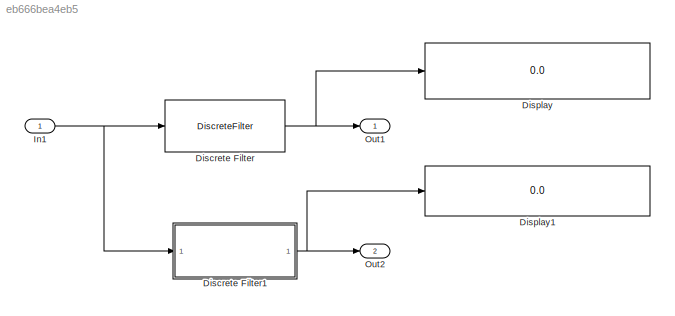
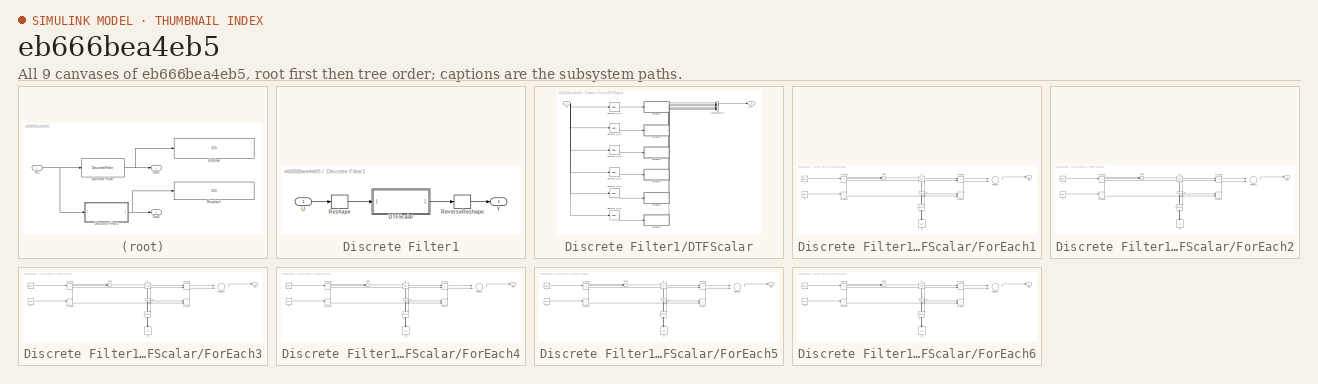
[diagram: thumbnail index - all 9 canvases of the model, root first then tree order]
MODEL slx_eb666bea4eb5
KIND model
CONFIG AbsTol = auto
CONFIG EnableMultiTasking = on
CONFIG FixedStep = 0.200000
CONFIG MaxStep = auto
CONFIG MinStep = auto
CONFIG RelTol = 1e-3
CONFIG SampleTimeConstraint = Unconstrained
CONFIG Solver = ode3
CONFIG SolverName = ode3
CONFIG StartTime = 0.0
CONFIG StopTime = 10.0
WORKSPACE source: MAT-file member
WORKSPACE A = [2 5 4 4]
BLOCK [DiscreteFilter] Discrete Filter
  Denominator = [4 5 6]
  InputPortMap = u0
  Numerator = [1  3]
  Ports = [1, 1]
BLOCK [SubSystem] Discrete Filter1
  MinAlgLoopOccurrences = on
  Ports = [1, 1]
  RequestExecContextInheritance = off
  TreatAsAtomicUnit = on
  Variant = off
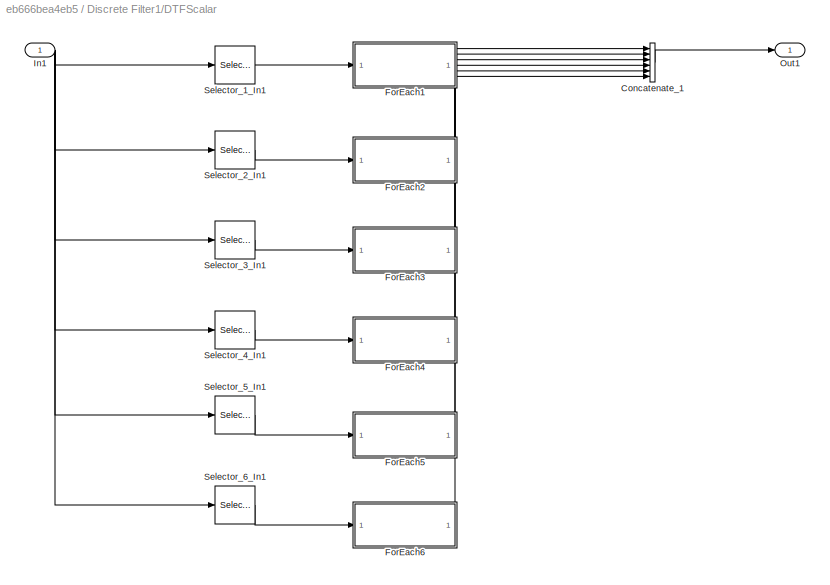
BLOCK [SubSystem] Discrete Filter1/DTFScalar
  MinAlgLoopOccurrences = on
  Ports = [1, 1]
  RequestExecContextInheritance = off
  TreatAsAtomicUnit = on
  Variant = off
BLOCK [Concatenate] Discrete Filter1/DTFScalar/Concatenate_1
  Mode = Multidimensional array
  NumInputs = 6
  Ports = [6, 1]
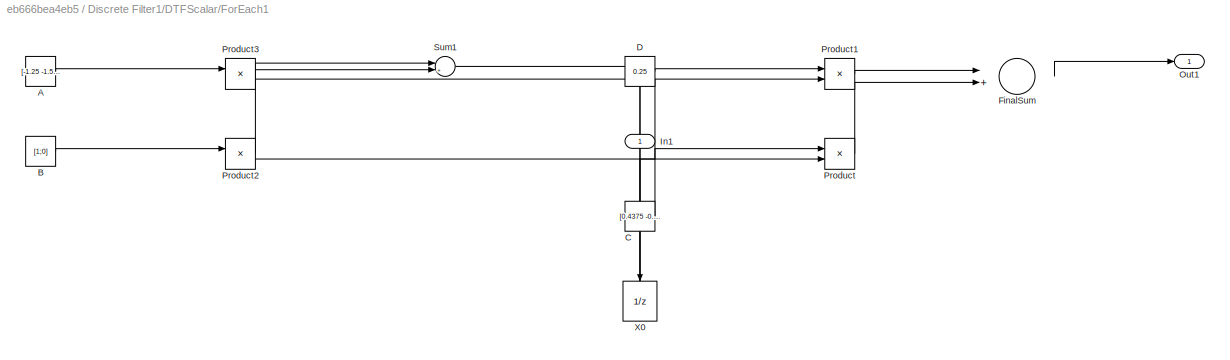
BLOCK [SubSystem] Discrete Filter1/DTFScalar/ForEach1
  MinAlgLoopOccurrences = on
  Ports = [1, 1]
  RequestExecContextInheritance = off
  TreatAsAtomicUnit = on
  Variant = off
BLOCK [Constant] Discrete Filter1/DTFScalar/ForEach1/A
  Value = [-1.25 -1.5;1 0]
  VectorParams1D = off
BLOCK [Constant] Discrete Filter1/DTFScalar/ForEach1/B
  Value = [1;0]
  VectorParams1D = off
BLOCK [Constant] Discrete Filter1/DTFScalar/ForEach1/C
  Value = [0.4375 -0.375]
  VectorParams1D = off
BLOCK [Constant] Discrete Filter1/DTFScalar/ForEach1/D
  Value = 0.25
  VectorParams1D = off
BLOCK [Sum] Discrete Filter1/DTFScalar/ForEach1/FinalSum
  InputSameDT = off
  Inputs = |++
  OutDataTypeStr = Inherit: Inherit via internal rule
  Ports = [2, 1]
  SaturateOnIntegerOverflow = off
BLOCK [Inport] Discrete Filter1/DTFScalar/ForEach1/In1
  IconDisplay = Port number
BLOCK [Outport] Discrete Filter1/DTFScalar/ForEach1/Out1
  IconDisplay = Port number
BLOCK [Product] Discrete Filter1/DTFScalar/ForEach1/Product
  InputSameDT = off
  Multiplication = Matrix(*)
  OutDataTypeStr = Inherit: Inherit via internal rule
  Ports = [2, 1]
  RndMeth = Floor
  SaturateOnIntegerOverflow = off
BLOCK [Product] Discrete Filter1/DTFScalar/ForEach1/Product1
  InputSameDT = off
  OutDataTypeStr = Inherit: Inherit via internal rule
  Ports = [2, 1]
  RndMeth = Floor
  SaturateOnIntegerOverflow = off
BLOCK [Product] Discrete Filter1/DTFScalar/ForEach1/Product2
  InputSameDT = off
  OutDataTypeStr = Inherit: Inherit via internal rule
  Ports = [2, 1]
  RndMeth = Floor
  SaturateOnIntegerOverflow = off
BLOCK [Product] Discrete Filter1/DTFScalar/ForEach1/Product3
  InputSameDT = off
  Multiplication = Matrix(*)
  OutDataTypeStr = Inherit: Inherit via internal rule
  Ports = [2, 1]
  RndMeth = Floor
  SaturateOnIntegerOverflow = off
BLOCK [Sum] Discrete Filter1/DTFScalar/ForEach1/Sum1
  IconShape = round
  InputSameDT = off
  Inputs = |++
  OutDataTypeStr = Inherit: Inherit via internal rule
  Ports = [2, 1]
  SaturateOnIntegerOverflow = off
BLOCK [UnitDelay] Discrete Filter1/DTFScalar/ForEach1/X0
  InputProcessing = Elements as channels (sample based)
  SampleTime = -1
BLOCK [SubSystem] Discrete Filter1/DTFScalar/ForEach2
  MinAlgLoopOccurrences = on
  Ports = [1, 1]
  RequestExecContextInheritance = off
  TreatAsAtomicUnit = on
  Variant = off
BLOCK [Constant] Discrete Filter1/DTFScalar/ForEach2/A
  Value = [-1.25 -1.5;1 0]
  VectorParams1D = off
BLOCK [Constant] Discrete Filter1/DTFScalar/ForEach2/B
  Value = [1;0]
  VectorParams1D = off
BLOCK [Constant] Discrete Filter1/DTFScalar/ForEach2/C
  Value = [0.4375 -0.375]
  VectorParams1D = off
BLOCK [Constant] Discrete Filter1/DTFScalar/ForEach2/D
  Value = 0.25
  VectorParams1D = off
BLOCK [Sum] Discrete Filter1/DTFScalar/ForEach2/FinalSum
  InputSameDT = off
  Inputs = |++
  OutDataTypeStr = Inherit: Inherit via internal rule
  Ports = [2, 1]
  SaturateOnIntegerOverflow = off
BLOCK [Inport] Discrete Filter1/DTFScalar/ForEach2/In1
  IconDisplay = Port number
BLOCK [Outport] Discrete Filter1/DTFScalar/ForEach2/Out1
  IconDisplay = Port number
BLOCK [Product] Discrete Filter1/DTFScalar/ForEach2/Product
  InputSameDT = off
  Multiplication = Matrix(*)
  OutDataTypeStr = Inherit: Inherit via internal rule
  Ports = [2, 1]
  RndMeth = Floor
  SaturateOnIntegerOverflow = off
BLOCK [Product] Discrete Filter1/DTFScalar/ForEach2/Product1
  InputSameDT = off
  OutDataTypeStr = Inherit: Inherit via internal rule
  Ports = [2, 1]
  RndMeth = Floor
  SaturateOnIntegerOverflow = off
BLOCK [Product] Discrete Filter1/DTFScalar/ForEach2/Product2
  InputSameDT = off
  OutDataTypeStr = Inherit: Inherit via internal rule
  Ports = [2, 1]
  RndMeth = Floor
  SaturateOnIntegerOverflow = off
BLOCK [Product] Discrete Filter1/DTFScalar/ForEach2/Product3
  InputSameDT = off
  Multiplication = Matrix(*)
  OutDataTypeStr = Inherit: Inherit via internal rule
  Ports = [2, 1]
  RndMeth = Floor
  SaturateOnIntegerOverflow = off
BLOCK [Sum] Discrete Filter1/DTFScalar/ForEach2/Sum1
  IconShape = round
  InputSameDT = off
  Inputs = |++
  OutDataTypeStr = Inherit: Inherit via internal rule
  Ports = [2, 1]
  SaturateOnIntegerOverflow = off
BLOCK [UnitDelay] Discrete Filter1/DTFScalar/ForEach2/X0
  InputProcessing = Elements as channels (sample based)
  SampleTime = -1
BLOCK [SubSystem] Discrete Filter1/DTFScalar/ForEach3
  MinAlgLoopOccurrences = on
  Ports = [1, 1]
  RequestExecContextInheritance = off
  TreatAsAtomicUnit = on
  Variant = off
BLOCK [Constant] Discrete Filter1/DTFScalar/ForEach3/A
  Value = [-1.25 -1.5;1 0]
  VectorParams1D = off
BLOCK [Constant] Discrete Filter1/DTFScalar/ForEach3/B
  Value = [1;0]
  VectorParams1D = off
BLOCK [Constant] Discrete Filter1/DTFScalar/ForEach3/C
  Value = [0.4375 -0.375]
  VectorParams1D = off
BLOCK [Constant] Discrete Filter1/DTFScalar/ForEach3/D
  Value = 0.25
  VectorParams1D = off
BLOCK [Sum] Discrete Filter1/DTFScalar/ForEach3/FinalSum
  InputSameDT = off
  Inputs = |++
  OutDataTypeStr = Inherit: Inherit via internal rule
  Ports = [2, 1]
  SaturateOnIntegerOverflow = off
BLOCK [Inport] Discrete Filter1/DTFScalar/ForEach3/In1
  IconDisplay = Port number
BLOCK [Outport] Discrete Filter1/DTFScalar/ForEach3/Out1
  IconDisplay = Port number
BLOCK [Product] Discrete Filter1/DTFScalar/ForEach3/Product
  InputSameDT = off
  Multiplication = Matrix(*)
  OutDataTypeStr = Inherit: Inherit via internal rule
  Ports = [2, 1]
  RndMeth = Floor
  SaturateOnIntegerOverflow = off
BLOCK [Product] Discrete Filter1/DTFScalar/ForEach3/Product1
  InputSameDT = off
  OutDataTypeStr = Inherit: Inherit via internal rule
  Ports = [2, 1]
  RndMeth = Floor
  SaturateOnIntegerOverflow = off
BLOCK [Product] Discrete Filter1/DTFScalar/ForEach3/Product2
  InputSameDT = off
  OutDataTypeStr = Inherit: Inherit via internal rule
  Ports = [2, 1]
  RndMeth = Floor
  SaturateOnIntegerOverflow = off
BLOCK [Product] Discrete Filter1/DTFScalar/ForEach3/Product3
  InputSameDT = off
  Multiplication = Matrix(*)
  OutDataTypeStr = Inherit: Inherit via internal rule
  Ports = [2, 1]
  RndMeth = Floor
  SaturateOnIntegerOverflow = off
BLOCK [Sum] Discrete Filter1/DTFScalar/ForEach3/Sum1
  IconShape = round
  InputSameDT = off
  Inputs = |++
  OutDataTypeStr = Inherit: Inherit via internal rule
  Ports = [2, 1]
  SaturateOnIntegerOverflow = off
BLOCK [UnitDelay] Discrete Filter1/DTFScalar/ForEach3/X0
  InputProcessing = Elements as channels (sample based)
  SampleTime = -1
BLOCK [SubSystem] Discrete Filter1/DTFScalar/ForEach4
  MinAlgLoopOccurrences = on
  Ports = [1, 1]
  RequestExecContextInheritance = off
  TreatAsAtomicUnit = on
  Variant = off
BLOCK [Constant] Discrete Filter1/DTFScalar/ForEach4/A
  Value = [-1.25 -1.5;1 0]
  VectorParams1D = off
BLOCK [Constant] Discrete Filter1/DTFScalar/ForEach4/B
  Value = [1;0]
  VectorParams1D = off
BLOCK [Constant] Discrete Filter1/DTFScalar/ForEach4/C
  Value = [0.4375 -0.375]
  VectorParams1D = off
BLOCK [Constant] Discrete Filter1/DTFScalar/ForEach4/D
  Value = 0.25
  VectorParams1D = off
BLOCK [Sum] Discrete Filter1/DTFScalar/ForEach4/FinalSum
  InputSameDT = off
  Inputs = |++
  OutDataTypeStr = Inherit: Inherit via internal rule
  Ports = [2, 1]
  SaturateOnIntegerOverflow = off
BLOCK [Inport] Discrete Filter1/DTFScalar/ForEach4/In1
  IconDisplay = Port number
BLOCK [Outport] Discrete Filter1/DTFScalar/ForEach4/Out1
  IconDisplay = Port number
BLOCK [Product] Discrete Filter1/DTFScalar/ForEach4/Product
  InputSameDT = off
  Multiplication = Matrix(*)
  OutDataTypeStr = Inherit: Inherit via internal rule
  Ports = [2, 1]
  RndMeth = Floor
  SaturateOnIntegerOverflow = off
BLOCK [Product] Discrete Filter1/DTFScalar/ForEach4/Product1
  InputSameDT = off
  OutDataTypeStr = Inherit: Inherit via internal rule
  Ports = [2, 1]
  RndMeth = Floor
  SaturateOnIntegerOverflow = off
BLOCK [Product] Discrete Filter1/DTFScalar/ForEach4/Product2
  InputSameDT = off
  OutDataTypeStr = Inherit: Inherit via internal rule
  Ports = [2, 1]
  RndMeth = Floor
  SaturateOnIntegerOverflow = off
BLOCK [Product] Discrete Filter1/DTFScalar/ForEach4/Product3
  InputSameDT = off
  Multiplication = Matrix(*)
  OutDataTypeStr = Inherit: Inherit via internal rule
  Ports = [2, 1]
  RndMeth = Floor
  SaturateOnIntegerOverflow = off
BLOCK [Sum] Discrete Filter1/DTFScalar/ForEach4/Sum1
  IconShape = round
  InputSameDT = off
  Inputs = |++
  OutDataTypeStr = Inherit: Inherit via internal rule
  Ports = [2, 1]
  SaturateOnIntegerOverflow = off
BLOCK [UnitDelay] Discrete Filter1/DTFScalar/ForEach4/X0
  InputProcessing = Elements as channels (sample based)
  SampleTime = -1
BLOCK [SubSystem] Discrete Filter1/DTFScalar/ForEach5
  MinAlgLoopOccurrences = on
  Ports = [1, 1]
  RequestExecContextInheritance = off
  TreatAsAtomicUnit = on
  Variant = off
BLOCK [Constant] Discrete Filter1/DTFScalar/ForEach5/A
  Value = [-1.25 -1.5;1 0]
  VectorParams1D = off
BLOCK [Constant] Discrete Filter1/DTFScalar/ForEach5/B
  Value = [1;0]
  VectorParams1D = off
BLOCK [Constant] Discrete Filter1/DTFScalar/ForEach5/C
  Value = [0.4375 -0.375]
  VectorParams1D = off
BLOCK [Constant] Discrete Filter1/DTFScalar/ForEach5/D
  Value = 0.25
  VectorParams1D = off
BLOCK [Sum] Discrete Filter1/DTFScalar/ForEach5/FinalSum
  InputSameDT = off
  Inputs = |++
  OutDataTypeStr = Inherit: Inherit via internal rule
  Ports = [2, 1]
  SaturateOnIntegerOverflow = off
BLOCK [Inport] Discrete Filter1/DTFScalar/ForEach5/In1
  IconDisplay = Port number
BLOCK [Outport] Discrete Filter1/DTFScalar/ForEach5/Out1
  IconDisplay = Port number
BLOCK [Product] Discrete Filter1/DTFScalar/ForEach5/Product
  InputSameDT = off
  Multiplication = Matrix(*)
  OutDataTypeStr = Inherit: Inherit via internal rule
  Ports = [2, 1]
  RndMeth = Floor
  SaturateOnIntegerOverflow = off
BLOCK [Product] Discrete Filter1/DTFScalar/ForEach5/Product1
  InputSameDT = off
  OutDataTypeStr = Inherit: Inherit via internal rule
  Ports = [2, 1]
  RndMeth = Floor
  SaturateOnIntegerOverflow = off
BLOCK [Product] Discrete Filter1/DTFScalar/ForEach5/Product2
  InputSameDT = off
  OutDataTypeStr = Inherit: Inherit via internal rule
  Ports = [2, 1]
  RndMeth = Floor
  SaturateOnIntegerOverflow = off
BLOCK [Product] Discrete Filter1/DTFScalar/ForEach5/Product3
  InputSameDT = off
  Multiplication = Matrix(*)
  OutDataTypeStr = Inherit: Inherit via internal rule
  Ports = [2, 1]
  RndMeth = Floor
  SaturateOnIntegerOverflow = off
BLOCK [Sum] Discrete Filter1/DTFScalar/ForEach5/Sum1
  IconShape = round
  InputSameDT = off
  Inputs = |++
  OutDataTypeStr = Inherit: Inherit via internal rule
  Ports = [2, 1]
  SaturateOnIntegerOverflow = off
BLOCK [UnitDelay] Discrete Filter1/DTFScalar/ForEach5/X0
  InputProcessing = Elements as channels (sample based)
  SampleTime = -1
BLOCK [SubSystem] Discrete Filter1/DTFScalar/ForEach6
  MinAlgLoopOccurrences = on
  Ports = [1, 1]
  RequestExecContextInheritance = off
  TreatAsAtomicUnit = on
  Variant = off
BLOCK [Constant] Discrete Filter1/DTFScalar/ForEach6/A
  Value = [-1.25 -1.5;1 0]
  VectorParams1D = off
BLOCK [Constant] Discrete Filter1/DTFScalar/ForEach6/B
  Value = [1;0]
  VectorParams1D = off
BLOCK [Constant] Discrete Filter1/DTFScalar/ForEach6/C
  Value = [0.4375 -0.375]
  VectorParams1D = off
BLOCK [Constant] Discrete Filter1/DTFScalar/ForEach6/D
  Value = 0.25
  VectorParams1D = off
BLOCK [Sum] Discrete Filter1/DTFScalar/ForEach6/FinalSum
  InputSameDT = off
  Inputs = |++
  OutDataTypeStr = Inherit: Inherit via internal rule
  Ports = [2, 1]
  SaturateOnIntegerOverflow = off
BLOCK [Inport] Discrete Filter1/DTFScalar/ForEach6/In1
  IconDisplay = Port number
BLOCK [Outport] Discrete Filter1/DTFScalar/ForEach6/Out1
  IconDisplay = Port number
BLOCK [Product] Discrete Filter1/DTFScalar/ForEach6/Product
  InputSameDT = off
  Multiplication = Matrix(*)
  OutDataTypeStr = Inherit: Inherit via internal rule
  Ports = [2, 1]
  RndMeth = Floor
  SaturateOnIntegerOverflow = off
BLOCK [Product] Discrete Filter1/DTFScalar/ForEach6/Product1
  InputSameDT = off
  OutDataTypeStr = Inherit: Inherit via internal rule
  Ports = [2, 1]
  RndMeth = Floor
  SaturateOnIntegerOverflow = off
BLOCK [Product] Discrete Filter1/DTFScalar/ForEach6/Product2
  InputSameDT = off
  OutDataTypeStr = Inherit: Inherit via internal rule
  Ports = [2, 1]
  RndMeth = Floor
  SaturateOnIntegerOverflow = off
BLOCK [Product] Discrete Filter1/DTFScalar/ForEach6/Product3
  InputSameDT = off
  Multiplication = Matrix(*)
  OutDataTypeStr = Inherit: Inherit via internal rule
  Ports = [2, 1]
  RndMeth = Floor
  SaturateOnIntegerOverflow = off
BLOCK [Sum] Discrete Filter1/DTFScalar/ForEach6/Sum1
  IconShape = round
  InputSameDT = off
  Inputs = |++
  OutDataTypeStr = Inherit: Inherit via internal rule
  Ports = [2, 1]
  SaturateOnIntegerOverflow = off
BLOCK [UnitDelay] Discrete Filter1/DTFScalar/ForEach6/X0
  InputProcessing = Elements as channels (sample based)
  SampleTime = -1
BLOCK [Inport] Discrete Filter1/DTFScalar/In1
  IconDisplay = Port number
BLOCK [Outport] Discrete Filter1/DTFScalar/Out1
  IconDisplay = Port number
BLOCK [Selector] Discrete Filter1/DTFScalar/Selector_1_In1
  IndexOptions = Index vector (dialog),Select all
  Indices = 1,
  NumberOfDimensions = 2
  OutputSizes = 1
  Ports = [1, 1]
BLOCK [Selector] Discrete Filter1/DTFScalar/Selector_2_In1
  IndexOptions = Index vector (dialog),Select all
  Indices = 2,
  NumberOfDimensions = 2
  OutputSizes = 1
  Ports = [1, 1]
BLOCK [Selector] Discrete Filter1/DTFScalar/Selector_3_In1
  IndexOptions = Index vector (dialog),Select all
  Indices = 3,
  NumberOfDimensions = 2
  OutputSizes = 1
  Ports = [1, 1]
BLOCK [Selector] Discrete Filter1/DTFScalar/Selector_4_In1
  IndexOptions = Index vector (dialog),Select all
  Indices = 4,
  NumberOfDimensions = 2
  OutputSizes = 1
  Ports = [1, 1]
BLOCK [Selector] Discrete Filter1/DTFScalar/Selector_5_In1
  IndexOptions = Index vector (dialog),Select all
  Indices = 5,
  NumberOfDimensions = 2
  OutputSizes = 1
  Ports = [1, 1]
BLOCK [Selector] Discrete Filter1/DTFScalar/Selector_6_In1
  IndexOptions = Index vector (dialog),Select all
  Indices = 6,
  NumberOfDimensions = 2
  OutputSizes = 1
  Ports = [1, 1]
BLOCK [Reshape] Discrete Filter1/Reshape
  OutputDimensionality = Column vector (2-D)
  Ports = [1, 1]
BLOCK [Reshape] Discrete Filter1/ReverseReshape
  OutputDimensionality = Customize
  OutputDimensions = [2 3]
  Ports = [1, 1]
BLOCK [Inport] Discrete Filter1/U
  IconDisplay = Port number
BLOCK [Outport] Discrete Filter1/Y
  IconDisplay = Port number
BLOCK [Display] Display
  Decimation = 1
  Ports = [1]
BLOCK [Display] Display1
  Decimation = 1
  Ports = [1]
BLOCK [Inport] In1
  IconDisplay = Port number
  PortDimensions = [2 3]
BLOCK [Outport] Out1
  IconDisplay = Port number
BLOCK [Outport] Out2
  IconDisplay = Port number
  Port = 2
LINE Discrete Filter1/DTFScalar/Concatenate_1:1 -> Discrete Filter1/DTFScalar/Out1:1
LINE Discrete Filter1/DTFScalar/ForEach1/A:1 -> Discrete Filter1/DTFScalar/ForEach1/Product3:1
LINE Discrete Filter1/DTFScalar/ForEach1/B:1 -> Discrete Filter1/DTFScalar/ForEach1/Product2:1
LINE Discrete Filter1/DTFScalar/ForEach1/C:1 -> Discrete Filter1/DTFScalar/ForEach1/Product:1
LINE Discrete Filter1/DTFScalar/ForEach1/D:1 -> Discrete Filter1/DTFScalar/ForEach1/Product1:1
LINE Discrete Filter1/DTFScalar/ForEach1/FinalSum:1 -> Discrete Filter1/DTFScalar/ForEach1/Out1:1
NET Discrete Filter1/DTFScalar/ForEach1/In1:1 -> Discrete Filter1/DTFScalar/ForEach1/Product1:2, Discrete Filter1/DTFScalar/ForEach1/Product2:2
LINE Discrete Filter1/DTFScalar/ForEach1/Product1:1 -> Discrete Filter1/DTFScalar/ForEach1/FinalSum:1
LINE Discrete Filter1/DTFScalar/ForEach1/Product2:1 -> Discrete Filter1/DTFScalar/ForEach1/Sum1:2
LINE Discrete Filter1/DTFScalar/ForEach1/Product3:1 -> Discrete Filter1/DTFScalar/ForEach1/Sum1:1
LINE Discrete Filter1/DTFScalar/ForEach1/Product:1 -> Discrete Filter1/DTFScalar/ForEach1/FinalSum:2
LINE Discrete Filter1/DTFScalar/ForEach1/Sum1:1 -> Discrete Filter1/DTFScalar/ForEach1/X0:1
NET Discrete Filter1/DTFScalar/ForEach1/X0:1 -> Discrete Filter1/DTFScalar/ForEach1/Product3:2, Discrete Filter1/DTFScalar/ForEach1/Product:2
LINE Discrete Filter1/DTFScalar/ForEach1:1 -> Discrete Filter1/DTFScalar/Concatenate_1:1
LINE Discrete Filter1/DTFScalar/ForEach2/A:1 -> Discrete Filter1/DTFScalar/ForEach2/Product3:1
LINE Discrete Filter1/DTFScalar/ForEach2/B:1 -> Discrete Filter1/DTFScalar/ForEach2/Product2:1
LINE Discrete Filter1/DTFScalar/ForEach2/C:1 -> Discrete Filter1/DTFScalar/ForEach2/Product:1
LINE Discrete Filter1/DTFScalar/ForEach2/D:1 -> Discrete Filter1/DTFScalar/ForEach2/Product1:1
LINE Discrete Filter1/DTFScalar/ForEach2/FinalSum:1 -> Discrete Filter1/DTFScalar/ForEach2/Out1:1
NET Discrete Filter1/DTFScalar/ForEach2/In1:1 -> Discrete Filter1/DTFScalar/ForEach2/Product1:2, Discrete Filter1/DTFScalar/ForEach2/Product2:2
LINE Discrete Filter1/DTFScalar/ForEach2/Product1:1 -> Discrete Filter1/DTFScalar/ForEach2/FinalSum:1
LINE Discrete Filter1/DTFScalar/ForEach2/Product2:1 -> Discrete Filter1/DTFScalar/ForEach2/Sum1:2
LINE Discrete Filter1/DTFScalar/ForEach2/Product3:1 -> Discrete Filter1/DTFScalar/ForEach2/Sum1:1
LINE Discrete Filter1/DTFScalar/ForEach2/Product:1 -> Discrete Filter1/DTFScalar/ForEach2/FinalSum:2
LINE Discrete Filter1/DTFScalar/ForEach2/Sum1:1 -> Discrete Filter1/DTFScalar/ForEach2/X0:1
NET Discrete Filter1/DTFScalar/ForEach2/X0:1 -> Discrete Filter1/DTFScalar/ForEach2/Product3:2, Discrete Filter1/DTFScalar/ForEach2/Product:2
LINE Discrete Filter1/DTFScalar/ForEach2:1 -> Discrete Filter1/DTFScalar/Concatenate_1:2
LINE Discrete Filter1/DTFScalar/ForEach3/A:1 -> Discrete Filter1/DTFScalar/ForEach3/Product3:1
LINE Discrete Filter1/DTFScalar/ForEach3/B:1 -> Discrete Filter1/DTFScalar/ForEach3/Product2:1
LINE Discrete Filter1/DTFScalar/ForEach3/C:1 -> Discrete Filter1/DTFScalar/ForEach3/Product:1
LINE Discrete Filter1/DTFScalar/ForEach3/D:1 -> Discrete Filter1/DTFScalar/ForEach3/Product1:1
LINE Discrete Filter1/DTFScalar/ForEach3/FinalSum:1 -> Discrete Filter1/DTFScalar/ForEach3/Out1:1
NET Discrete Filter1/DTFScalar/ForEach3/In1:1 -> Discrete Filter1/DTFScalar/ForEach3/Product1:2, Discrete Filter1/DTFScalar/ForEach3/Product2:2
LINE Discrete Filter1/DTFScalar/ForEach3/Product1:1 -> Discrete Filter1/DTFScalar/ForEach3/FinalSum:1
LINE Discrete Filter1/DTFScalar/ForEach3/Product2:1 -> Discrete Filter1/DTFScalar/ForEach3/Sum1:2
LINE Discrete Filter1/DTFScalar/ForEach3/Product3:1 -> Discrete Filter1/DTFScalar/ForEach3/Sum1:1
LINE Discrete Filter1/DTFScalar/ForEach3/Product:1 -> Discrete Filter1/DTFScalar/ForEach3/FinalSum:2
LINE Discrete Filter1/DTFScalar/ForEach3/Sum1:1 -> Discrete Filter1/DTFScalar/ForEach3/X0:1
NET Discrete Filter1/DTFScalar/ForEach3/X0:1 -> Discrete Filter1/DTFScalar/ForEach3/Product3:2, Discrete Filter1/DTFScalar/ForEach3/Product:2
LINE Discrete Filter1/DTFScalar/ForEach3:1 -> Discrete Filter1/DTFScalar/Concatenate_1:3
LINE Discrete Filter1/DTFScalar/ForEach4/A:1 -> Discrete Filter1/DTFScalar/ForEach4/Product3:1
LINE Discrete Filter1/DTFScalar/ForEach4/B:1 -> Discrete Filter1/DTFScalar/ForEach4/Product2:1
LINE Discrete Filter1/DTFScalar/ForEach4/C:1 -> Discrete Filter1/DTFScalar/ForEach4/Product:1
LINE Discrete Filter1/DTFScalar/ForEach4/D:1 -> Discrete Filter1/DTFScalar/ForEach4/Product1:1
LINE Discrete Filter1/DTFScalar/ForEach4/FinalSum:1 -> Discrete Filter1/DTFScalar/ForEach4/Out1:1
NET Discrete Filter1/DTFScalar/ForEach4/In1:1 -> Discrete Filter1/DTFScalar/ForEach4/Product1:2, Discrete Filter1/DTFScalar/ForEach4/Product2:2
LINE Discrete Filter1/DTFScalar/ForEach4/Product1:1 -> Discrete Filter1/DTFScalar/ForEach4/FinalSum:1
LINE Discrete Filter1/DTFScalar/ForEach4/Product2:1 -> Discrete Filter1/DTFScalar/ForEach4/Sum1:2
LINE Discrete Filter1/DTFScalar/ForEach4/Product3:1 -> Discrete Filter1/DTFScalar/ForEach4/Sum1:1
LINE Discrete Filter1/DTFScalar/ForEach4/Product:1 -> Discrete Filter1/DTFScalar/ForEach4/FinalSum:2
LINE Discrete Filter1/DTFScalar/ForEach4/Sum1:1 -> Discrete Filter1/DTFScalar/ForEach4/X0:1
NET Discrete Filter1/DTFScalar/ForEach4/X0:1 -> Discrete Filter1/DTFScalar/ForEach4/Product3:2, Discrete Filter1/DTFScalar/ForEach4/Product:2
LINE Discrete Filter1/DTFScalar/ForEach4:1 -> Discrete Filter1/DTFScalar/Concatenate_1:4
LINE Discrete Filter1/DTFScalar/ForEach5/A:1 -> Discrete Filter1/DTFScalar/ForEach5/Product3:1
LINE Discrete Filter1/DTFScalar/ForEach5/B:1 -> Discrete Filter1/DTFScalar/ForEach5/Product2:1
LINE Discrete Filter1/DTFScalar/ForEach5/C:1 -> Discrete Filter1/DTFScalar/ForEach5/Product:1
LINE Discrete Filter1/DTFScalar/ForEach5/D:1 -> Discrete Filter1/DTFScalar/ForEach5/Product1:1
LINE Discrete Filter1/DTFScalar/ForEach5/FinalSum:1 -> Discrete Filter1/DTFScalar/ForEach5/Out1:1
NET Discrete Filter1/DTFScalar/ForEach5/In1:1 -> Discrete Filter1/DTFScalar/ForEach5/Product1:2, Discrete Filter1/DTFScalar/ForEach5/Product2:2
LINE Discrete Filter1/DTFScalar/ForEach5/Product1:1 -> Discrete Filter1/DTFScalar/ForEach5/FinalSum:1
LINE Discrete Filter1/DTFScalar/ForEach5/Product2:1 -> Discrete Filter1/DTFScalar/ForEach5/Sum1:2
LINE Discrete Filter1/DTFScalar/ForEach5/Product3:1 -> Discrete Filter1/DTFScalar/ForEach5/Sum1:1
LINE Discrete Filter1/DTFScalar/ForEach5/Product:1 -> Discrete Filter1/DTFScalar/ForEach5/FinalSum:2
LINE Discrete Filter1/DTFScalar/ForEach5/Sum1:1 -> Discrete Filter1/DTFScalar/ForEach5/X0:1
NET Discrete Filter1/DTFScalar/ForEach5/X0:1 -> Discrete Filter1/DTFScalar/ForEach5/Product3:2, Discrete Filter1/DTFScalar/ForEach5/Product:2
LINE Discrete Filter1/DTFScalar/ForEach5:1 -> Discrete Filter1/DTFScalar/Concatenate_1:5
LINE Discrete Filter1/DTFScalar/ForEach6/A:1 -> Discrete Filter1/DTFScalar/ForEach6/Product3:1
LINE Discrete Filter1/DTFScalar/ForEach6/B:1 -> Discrete Filter1/DTFScalar/ForEach6/Product2:1
LINE Discrete Filter1/DTFScalar/ForEach6/C:1 -> Discrete Filter1/DTFScalar/ForEach6/Product:1
LINE Discrete Filter1/DTFScalar/ForEach6/D:1 -> Discrete Filter1/DTFScalar/ForEach6/Product1:1
LINE Discrete Filter1/DTFScalar/ForEach6/FinalSum:1 -> Discrete Filter1/DTFScalar/ForEach6/Out1:1
NET Discrete Filter1/DTFScalar/ForEach6/In1:1 -> Discrete Filter1/DTFScalar/ForEach6/Product1:2, Discrete Filter1/DTFScalar/ForEach6/Product2:2
LINE Discrete Filter1/DTFScalar/ForEach6/Product1:1 -> Discrete Filter1/DTFScalar/ForEach6/FinalSum:1
LINE Discrete Filter1/DTFScalar/ForEach6/Product2:1 -> Discrete Filter1/DTFScalar/ForEach6/Sum1:2
LINE Discrete Filter1/DTFScalar/ForEach6/Product3:1 -> Discrete Filter1/DTFScalar/ForEach6/Sum1:1
LINE Discrete Filter1/DTFScalar/ForEach6/Product:1 -> Discrete Filter1/DTFScalar/ForEach6/FinalSum:2
LINE Discrete Filter1/DTFScalar/ForEach6/Sum1:1 -> Discrete Filter1/DTFScalar/ForEach6/X0:1
NET Discrete Filter1/DTFScalar/ForEach6/X0:1 -> Discrete Filter1/DTFScalar/ForEach6/Product3:2, Discrete Filter1/DTFScalar/ForEach6/Product:2
LINE Discrete Filter1/DTFScalar/ForEach6:1 -> Discrete Filter1/DTFScalar/Concatenate_1:6
NET Discrete Filter1/DTFScalar/In1:1 -> Discrete Filter1/DTFScalar/Selector_1_In1:1, Discrete Filter1/DTFScalar/Selector_2_In1:1, Discrete Filter1/DTFScalar/Selector_3_In1:1, Discrete Filter1/DTFScalar/Selector_4_In1:1, Discrete Filter1/DTFScalar/Selector_5_In1:1, Discrete Filter1/DTFScalar/Selector_6_In1:1
LINE Discrete Filter1/DTFScalar/Selector_1_In1:1 -> Discrete Filter1/DTFScalar/ForEach1:1
LINE Discrete Filter1/DTFScalar/Selector_2_In1:1 -> Discrete Filter1/DTFScalar/ForEach2:1
LINE Discrete Filter1/DTFScalar/Selector_3_In1:1 -> Discrete Filter1/DTFScalar/ForEach3:1
LINE Discrete Filter1/DTFScalar/Selector_4_In1:1 -> Discrete Filter1/DTFScalar/ForEach4:1
LINE Discrete Filter1/DTFScalar/Selector_5_In1:1 -> Discrete Filter1/DTFScalar/ForEach5:1
LINE Discrete Filter1/DTFScalar/Selector_6_In1:1 -> Discrete Filter1/DTFScalar/ForEach6:1
LINE Discrete Filter1/DTFScalar:1 -> Discrete Filter1/ReverseReshape:1
LINE Discrete Filter1/Reshape:1 -> Discrete Filter1/DTFScalar:1
LINE Discrete Filter1/ReverseReshape:1 -> Discrete Filter1/Y:1
LINE Discrete Filter1/U:1 -> Discrete Filter1/Reshape:1
NET Discrete Filter1:1 -> Display1:1, Out2:1
NET Discrete Filter:1 -> Display:1, Out1:1
NET In1:1 -> Discrete Filter1:1, Discrete Filter:1
note: NET lines group one-source signal fan-out (src -> all destinations, sorted); 1:1 wires keep LINE
